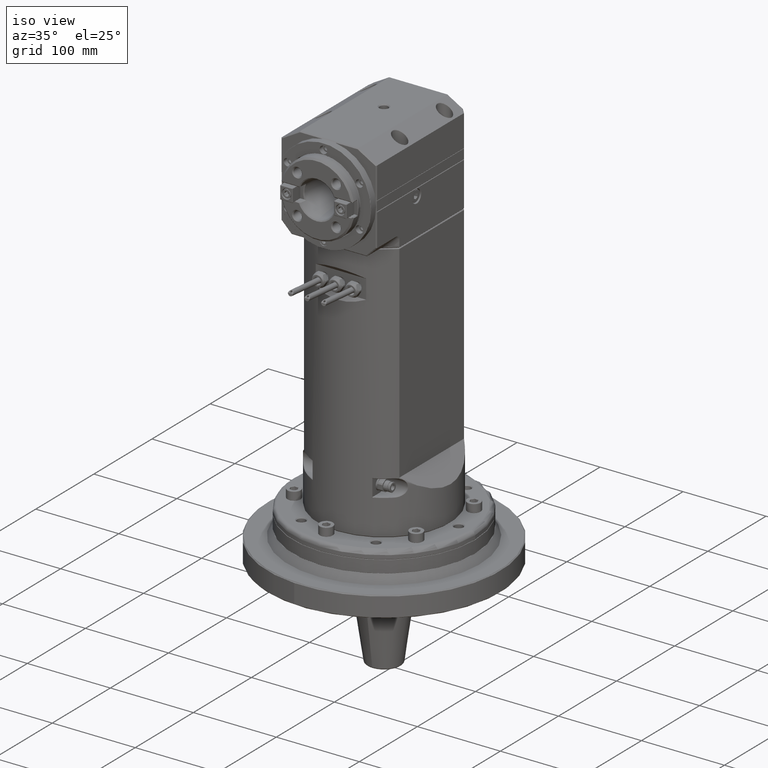
[diagram: clean part render]
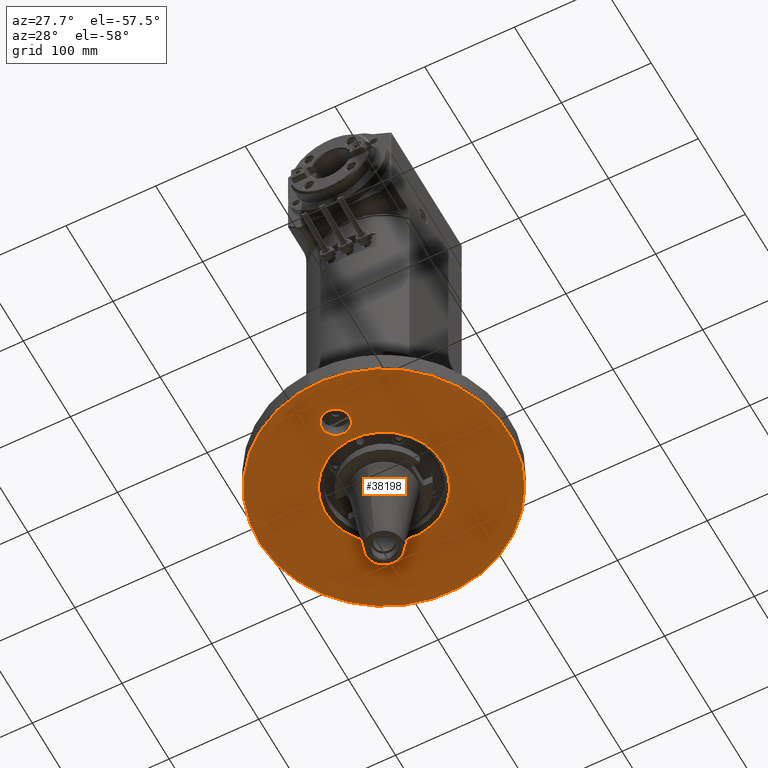
[diagram: tour spotlight — one face highlighted and labeled with its STEP entity id]
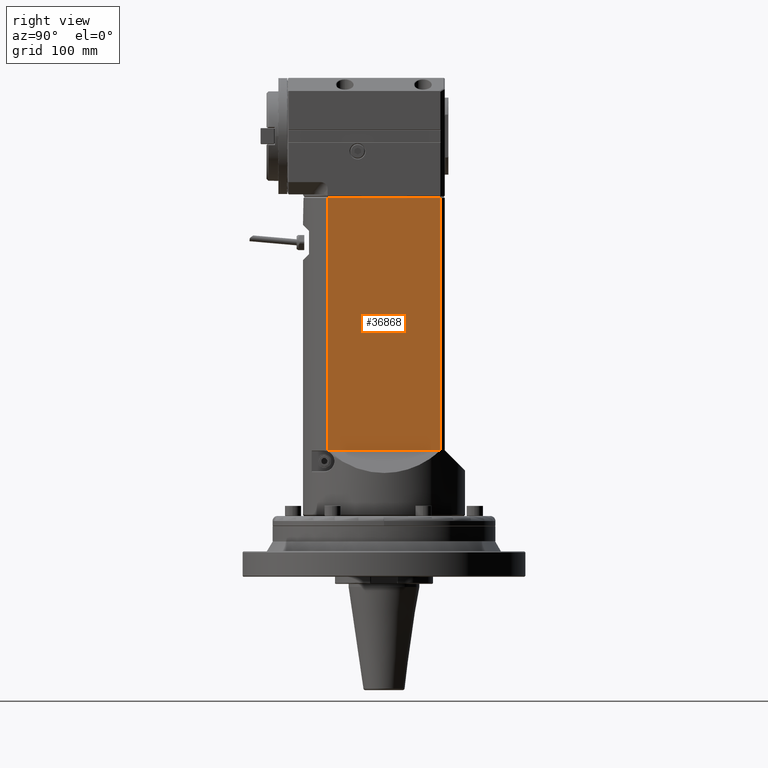
[diagram: tour spotlight — one face highlighted and labeled with its STEP entity id]
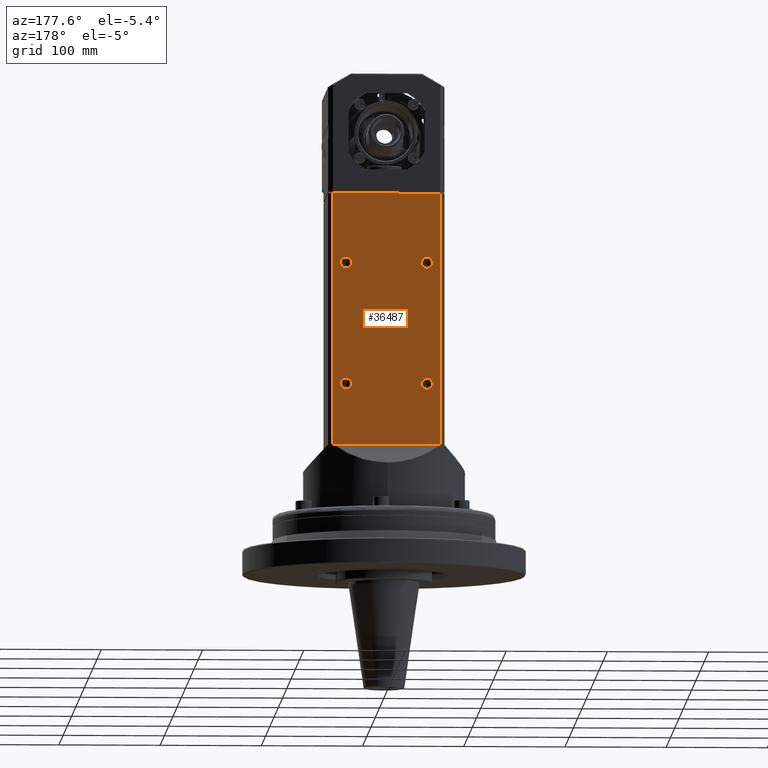
[diagram: tour spotlight — one face highlighted and labeled with its STEP entity id]
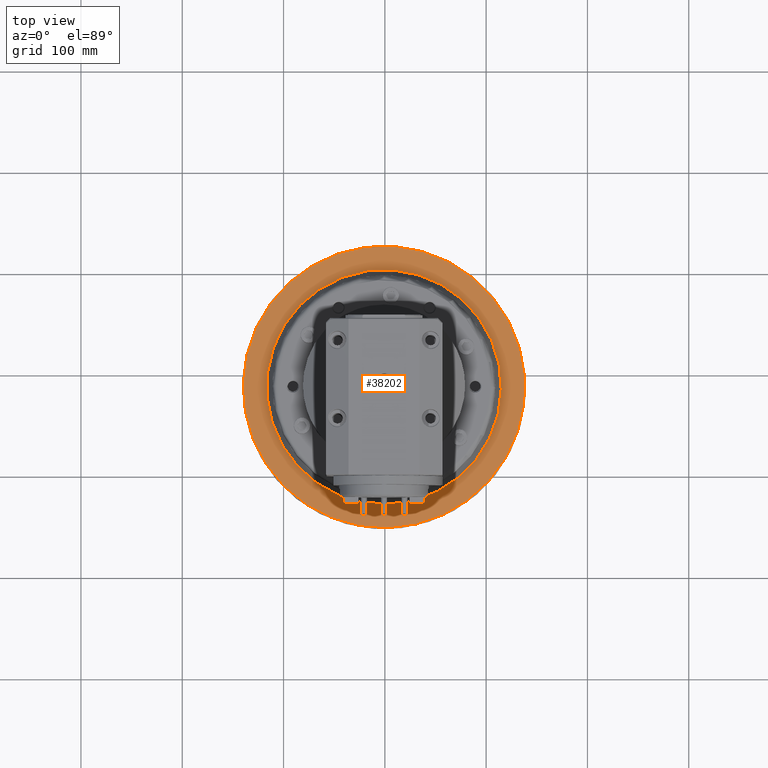
[diagram: tour spotlight — one face highlighted and labeled with its STEP entity id]
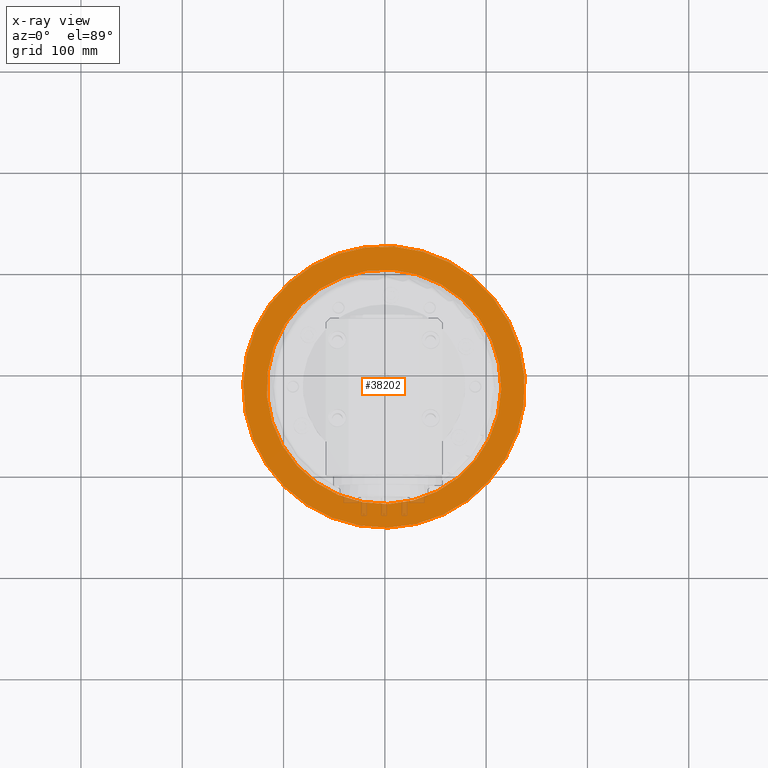
[diagram: x-ray of the same camera — body ghosted, this tour face saturated]
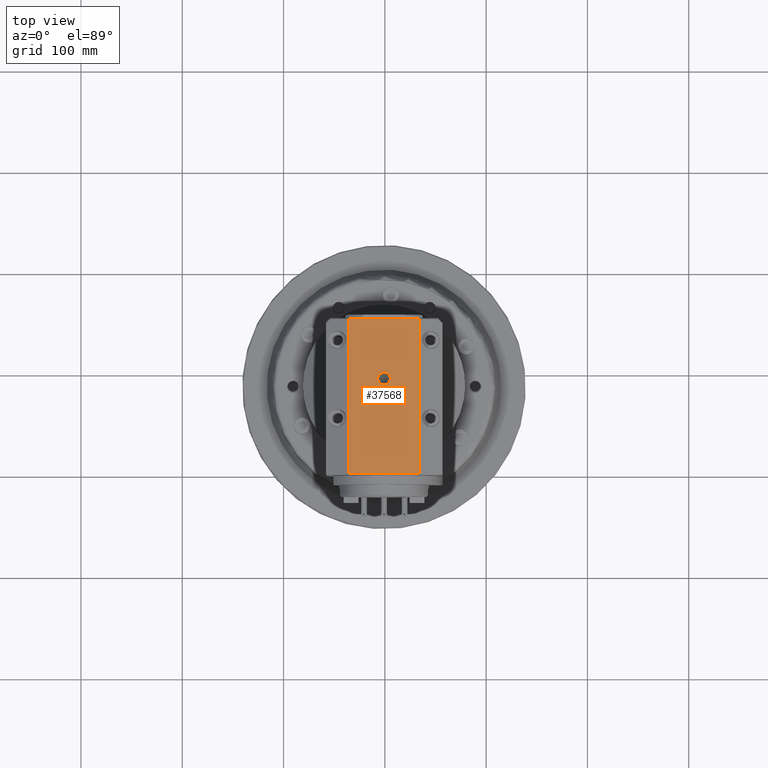
[diagram: tour spotlight — one face highlighted and labeled with its STEP entity id]
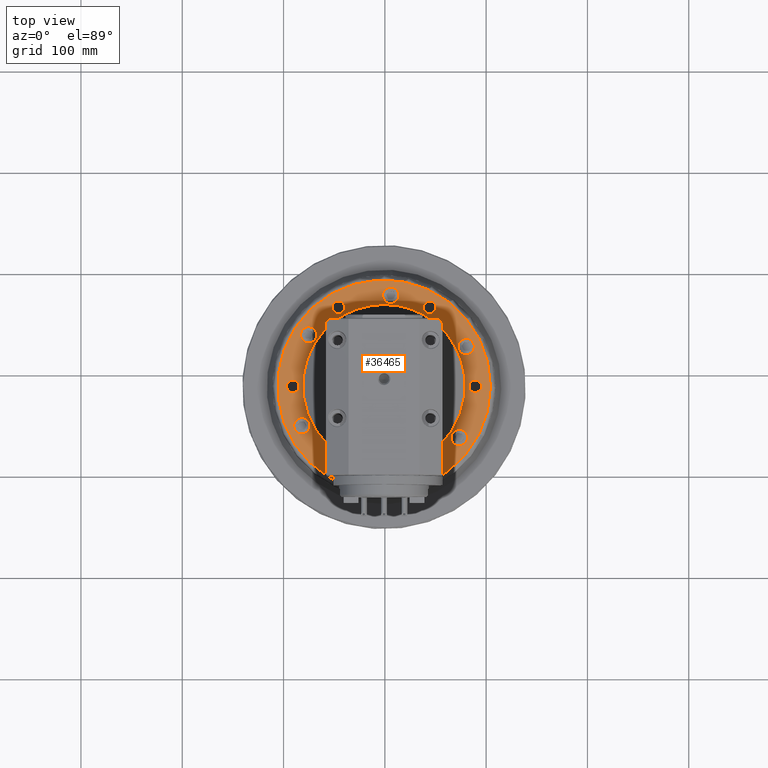
[diagram: tour spotlight — one face highlighted and labeled with its STEP entity id]
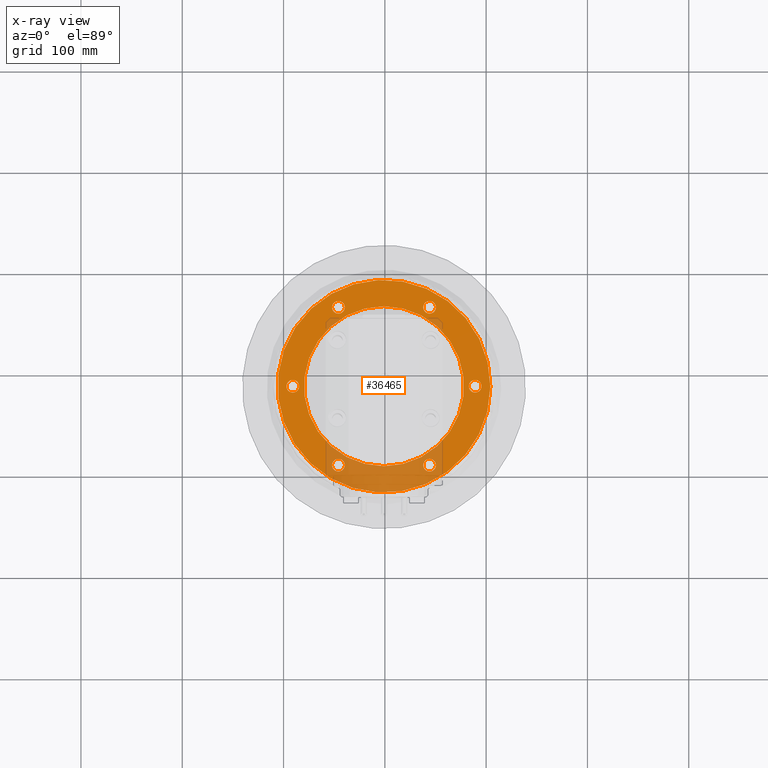
[diagram: x-ray of the same camera — body ghosted, this tour face saturated]
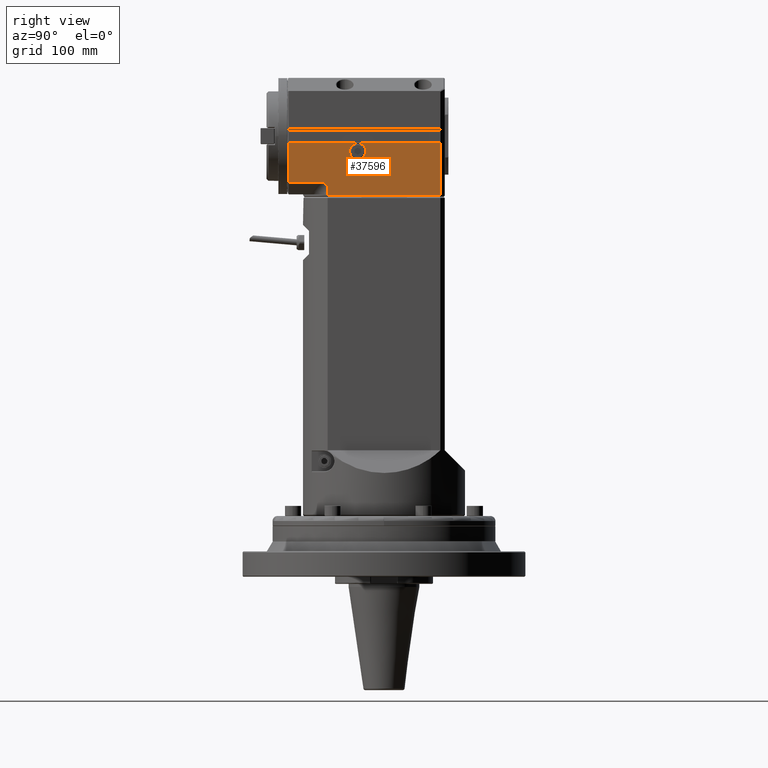
[diagram: tour spotlight — one face highlighted and labeled with its STEP entity id]
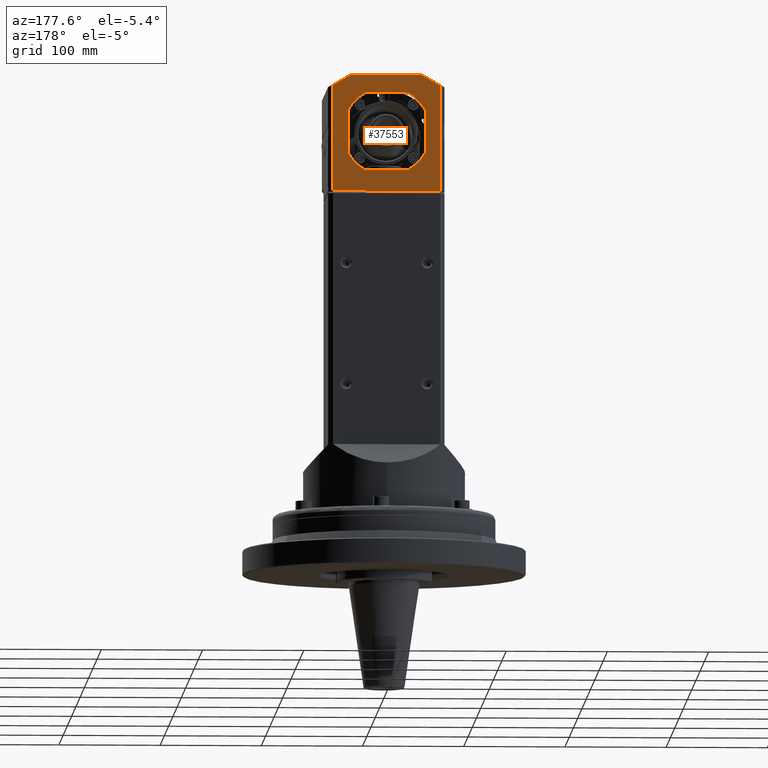
[diagram: tour spotlight — one face highlighted and labeled with its STEP entity id]
A machine part: a face-by-face anatomy tour. The part has 2191 B-rep faces; the first image is the clean iso view, then the 8 largest visible faces are spotlighted one at a time (largest first), each with its STEP entity span.

Face 1 — auxiliary view, entity #38198. In plain terms, the highlighted planar face has unit normal (0, 0, 1).
Definition (entity closure, byte-faithful):
#3638=FACE_BOUND('',#8796,.T.);
#3639=FACE_BOUND('',#8797,.T.);
#4438=PLANE('',#42023);
#6332=FACE_OUTER_BOUND('',#8795,.T.);
#8795=EDGE_LOOP('',(#34081));
#8796=EDGE_LOOP('',(#34082));
#8797=EDGE_LOOP('',(#34083));
#15755=CIRCLE('',#42022,2.55905511811024);
#15756=CIRCLE('',#42024,5.47244051134646);
#15757=CIRCLE('',#42025,0.610209860435433);
#19148=VERTEX_POINT('',#73003);
#19149=VERTEX_POINT('',#73007);
#19150=VERTEX_POINT('',#73009);
#24198=EDGE_CURVE('',#19148,#19148,#15755,.T.);
#24199=EDGE_CURVE('',#19149,#19149,#15756,.T.);
#24200=EDGE_CURVE('',#19150,#19150,#15757,.T.);
#34081=ORIENTED_EDGE('',*,*,#24199,.F.);
#34082=ORIENTED_EDGE('',*,*,#24200,.T.);
#34083=ORIENTED_EDGE('',*,*,#24198,.T.);
#38198=ADVANCED_FACE('',(#6332,#3638,#3639),#4438,.F.);
#42022=AXIS2_PLACEMENT_3D('',#73005,#51519,#51520);
#42023=AXIS2_PLACEMENT_3D('',#73006,#51521,#51522);
#42024=AXIS2_PLACEMENT_3D('',#73008,#51523,#51524);
#42025=AXIS2_PLACEMENT_3D('',#73010,#51525,#51526);
#51519=DIRECTION('center_axis',(0.,0.,1.));
#51520=DIRECTION('ref_axis',(0.,1.,0.));
#51521=DIRECTION('center_axis',(0.,0.,1.));
#51522=DIRECTION('ref_axis',(0.,1.,0.));
#51523=DIRECTION('center_axis',(0.,0.,1.));
#51524=DIRECTION('ref_axis',(0.,1.,0.));
#51525=DIRECTION('center_axis',(0.,0.,1.));
#51526=DIRECTION('ref_axis',(0.,-1.,0.));
#73003=CARTESIAN_POINT('',(0.,2.55905511811024,-1.37795275590551));
#73005=CARTESIAN_POINT('Origin',(0.,0.,-1.37795275590551));
#73006=CARTESIAN_POINT('Origin',(0.,0.,-1.37795275590551));
#73007=CARTESIAN_POINT('',(5.37394894446224E-14,5.47244051134604,-1.37795271887961));
#73008=CARTESIAN_POINT('Origin',(5.44096701201969E-14,-1.01380020745945E-13,
-1.37795271887992));
#73009=CARTESIAN_POINT('',(7.75012927823904E-15,-2.93309722617874,-1.37795275590551));
#73010=CARTESIAN_POINT('Origin',(7.675400123E-15,-3.54330708661417,-1.37795275590551));

Face 2 — right view, entity #36868. In plain terms, the highlighted planar face has unit normal (-1, -0, -0).
Definition (entity closure, byte-faithful):
#3865=PLANE('',#39440);
#5002=FACE_OUTER_BOUND('',#7253,.T.);
#7253=EDGE_LOOP('',(#27580,#27581,#27582,#27583));
#9306=LINE('',#54190,#11852);
#9307=LINE('',#54193,#11853);
#9933=LINE('',#58325,#12479);
#9934=LINE('',#58328,#12480);
#11852=VECTOR('',#43376,9.80314969514961);
#11853=VECTOR('',#43379,0.393700787401575);
#12479=VECTOR('',#44881,0.393700787401575);
#12480=VECTOR('',#44886,4.37964477584252);
#16370=VERTEX_POINT('',#54167);
#16380=VERTEX_POINT('',#54187);
#16381=VERTEX_POINT('',#54189);
#16382=VERTEX_POINT('',#54191);
#19906=EDGE_CURVE('',#16381,#16380,#9306,.T.);
#19908=EDGE_CURVE('',#16382,#16370,#9307,.T.);
#20969=EDGE_CURVE('',#16370,#16380,#9933,.T.);
#20971=EDGE_CURVE('',#16382,#16381,#9934,.T.);
#27580=ORIENTED_EDGE('',*,*,#20969,.F.);
#27581=ORIENTED_EDGE('',*,*,#19908,.F.);
#27582=ORIENTED_EDGE('',*,*,#20971,.T.);
#27583=ORIENTED_EDGE('',*,*,#19906,.T.);
#36868=ADVANCED_FACE('',(#5002),#3865,.F.);
#39440=AXIS2_PLACEMENT_3D('',#58327,#44884,#44885);
#43376=DIRECTION('',(9.076318445371E-9,-1.,3.653279527058E-9));
#43379=DIRECTION('',(0.,-1.,0.));
#44881=DIRECTION('',(0.,0.,-1.));
#44884=DIRECTION('center_axis',(1.,0.,0.));
#44885=DIRECTION('ref_axis',(0.,1.,0.));
#44886=DIRECTION('',(0.,0.,-1.));
#54167=CARTESIAN_POINT('',(-2.2637795274727,-12.3582677166446,2.18982238806098));
#54187=CARTESIAN_POINT('',(-2.26377949894556,-12.3582677208782,-2.18982237649169));
#54189=CARTESIAN_POINT('',(-2.26377952755906,-2.55511811023622,-2.18982238792205));
#54190=CARTESIAN_POINT('',(-2.26377952755906,-2.55511811023622,-2.18982238792205));
#54191=CARTESIAN_POINT('',(-2.26377952755906,-2.55511811023622,2.18982238792205));
#54193=CARTESIAN_POINT('',(-2.26377952755906,0.619881889763779,2.18982238792195));
#58325=CARTESIAN_POINT('',(-2.26377952755906,-12.3582677165354,-1.88976377952756));
#58327=CARTESIAN_POINT('Origin',(-2.26377952755906,-12.3976377952756,-3.77952755905512));
#58328=CARTESIAN_POINT('',(-2.26377952755906,-2.55511811023622,2.18982238792205));

Face 3 — auxiliary view, entity #36487. In plain terms, the highlighted planar face has unit normal (0, -1, 0).
Definition (entity closure, byte-faithful):
#3388=FACE_BOUND('',#6835,.T.);
#3389=FACE_BOUND('',#6836,.T.);
#3390=FACE_BOUND('',#6837,.T.);
#3391=FACE_BOUND('',#6838,.T.);
#3689=PLANE('',#39008);
#4621=FACE_OUTER_BOUND('',#6834,.T.);
#6834=EDGE_LOOP('',(#25494,#25495,#25496,#25497));
#6835=EDGE_LOOP('',(#25498));
#6836=EDGE_LOOP('',(#25499));
#6837=EDGE_LOOP('',(#25500));
#6838=EDGE_LOOP('',(#25501));
#9303=LINE('',#54179,#11849);
#9305=LINE('',#54186,#11851);
#9312=LINE('',#54293,#11858);
#9313=LINE('',#54295,#11859);
#11849=VECTOR('',#43367,0.393700787401575);
#11851=VECTOR('',#43373,0.393700787401575);
#11858=VECTOR('',#43398,4.16653749774016);
#11859=VECTOR('',#43401,0.393700787401575);
#14470=CIRCLE('',#39009,0.216535433070866);
#14471=CIRCLE('',#39010,0.216535433070866);
#14472=CIRCLE('',#39011,0.216535433070866);
#14473=CIRCLE('',#39012,0.216535433070866);
#16375=VERTEX_POINT('',#54176);
#16376=VERTEX_POINT('',#54178);
#16378=VERTEX_POINT('',#54183);
#16379=VERTEX_POINT('',#54185);
#16395=VERTEX_POINT('',#54296);
#16396=VERTEX_POINT('',#54298);
#16397=VERTEX_POINT('',#54300);
#16398=VERTEX_POINT('',#54302);
#19900=EDGE_CURVE('',#16376,#16375,#9303,.T.);
#19904=EDGE_CURVE('',#16378,#16379,#9305,.T.);
#19921=EDGE_CURVE('',#16378,#16376,#9312,.T.);
#19922=EDGE_CURVE('',#16379,#16375,#9313,.T.);
#19923=EDGE_CURVE('',#16395,#16395,#14470,.T.);
#19924=EDGE_CURVE('',#16396,#16396,#14471,.T.);
#19925=EDGE_CURVE('',#16397,#16397,#14472,.T.);
#19926=EDGE_CURVE('',#16398,#16398,#14473,.T.);
#25494=ORIENTED_EDGE('',*,*,#19922,.F.);
#25495=ORIENTED_EDGE('',*,*,#19904,.F.);
#25496=ORIENTED_EDGE('',*,*,#19921,.T.);
#25497=ORIENTED_EDGE('',*,*,#19900,.T.);
#25498=ORIENTED_EDGE('',*,*,#19923,.F.);
#25499=ORIENTED_EDGE('',*,*,#19924,.F.);
#25500=ORIENTED_EDGE('',*,*,#19925,.F.);
#25501=ORIENTED_EDGE('',*,*,#19926,.F.);
#36487=ADVANCED_FACE('',(#4621,#3388,#3389,#3390,#3391),#3689,.F.);
#39008=AXIS2_PLACEMENT_3D('',#54294,#43399,#43400);
#39009=AXIS2_PLACEMENT_3D('',#54297,#43402,#43403);
#39010=AXIS2_PLACEMENT_3D('',#54299,#43404,#43405);
#39011=AXIS2_PLACEMENT_3D('',#54301,#43406,#43407);
#39012=AXIS2_PLACEMENT_3D('',#54303,#43408,#43409);
#43367=DIRECTION('',(0.,-1.,0.));
#43373=DIRECTION('',(0.,-1.,0.));
#43398=DIRECTION('',(1.,0.,0.));
#43399=DIRECTION('center_axis',(0.,0.,1.));
#43400=DIRECTION('ref_axis',(0.,-1.,0.));
#43401=DIRECTION('',(1.,0.,0.));
#43402=DIRECTION('center_axis',(0.,0.,-1.));
#43403=DIRECTION('ref_axis',(1.,0.,0.));
#43404=DIRECTION('center_axis',(0.,0.,-1.));
#43405=DIRECTION('ref_axis',(1.,0.,0.));
#43406=DIRECTION('center_axis',(0.,0.,-1.));
#43407=DIRECTION('ref_axis',(1.,0.,0.));
#43408=DIRECTION('center_axis',(0.,0.,-1.));
#43409=DIRECTION('ref_axis',(1.,0.,0.));
#54176=CARTESIAN_POINT('',(2.08326874924056,-12.3582677165915,-2.36220472431138));
#54178=CARTESIAN_POINT('',(2.08326874886968,-2.55511811023622,-2.36220472440945));
#54179=CARTESIAN_POINT('',(2.08326874886976,0.619881889763779,-2.36220472440945));
#54183=CARTESIAN_POINT('',(-2.08326874886968,-2.55511811023622,-2.36220472440945));
#54185=CARTESIAN_POINT('',(-2.08326874920903,-12.3582677167936,-2.3622047242069));
#54186=CARTESIAN_POINT('',(-2.08326874886976,0.619881889763779,-2.36220472440945));
#54293=CARTESIAN_POINT('',(-2.08326874886968,-2.55511811023622,-2.36220472440945));
#54294=CARTESIAN_POINT('Origin',(-3.77952755905512,-2.55511811023622,-2.36220472440945));
#54295=CARTESIAN_POINT('',(-1.88976377952756,-12.3582677165354,-2.36220472440945));
#54296=CARTESIAN_POINT('',(1.35826771653543,-4.92125984251968,-2.36220472440945));
#54297=CARTESIAN_POINT('Origin',(1.5748031496063,-4.92125984251968,-2.36220472440945));
#54298=CARTESIAN_POINT('',(1.35826771653543,-9.64566929133858,-2.36220472440945));
#54299=CARTESIAN_POINT('Origin',(1.5748031496063,-9.64566929133858,-2.36220472440945));
#54300=CARTESIAN_POINT('',(-1.79133858267717,-4.92125984251968,-2.36220472440945));
#54301=CARTESIAN_POINT('Origin',(-1.5748031496063,-4.92125984251968,-2.36220472440945));
#54302=CARTESIAN_POINT('',(-1.79133858267717,-9.64566929133858,-2.36220472440945));
#54303=CARTESIAN_POINT('Origin',(-1.5748031496063,-9.64566929133858,-2.36220472440945));

Face 4 — top view, entity #38202. An x-ray twin of the same camera follows (body ghosted, this face saturated) — the face is partly hidden behind the body. In plain terms, the highlighted planar face has unit normal (0, 0, 1).
Definition (entity closure, byte-faithful):
#3640=FACE_BOUND('',#8802,.T.);
#4439=PLANE('',#42034);
#6336=FACE_OUTER_BOUND('',#8801,.T.);
#8801=EDGE_LOOP('',(#34100));
#8802=EDGE_LOOP('',(#34101));
#15762=CIRCLE('',#42033,5.47244041308268);
#15763=CIRCLE('',#42035,4.55801312941975);
#19155=VERTEX_POINT('',#73024);
#19156=VERTEX_POINT('',#73028);
#24208=EDGE_CURVE('',#19155,#19155,#15762,.T.);
#24209=EDGE_CURVE('',#19156,#19156,#15763,.T.);
#34100=ORIENTED_EDGE('',*,*,#24208,.T.);
#34101=ORIENTED_EDGE('',*,*,#24209,.T.);
#38202=ADVANCED_FACE('',(#6336,#3640),#4439,.T.);
#42033=AXIS2_PLACEMENT_3D('',#73026,#51544,#51545);
#42034=AXIS2_PLACEMENT_3D('',#73027,#51546,#51547);
#42035=AXIS2_PLACEMENT_3D('',#73029,#51548,#51549);
#51544=DIRECTION('center_axis',(0.,0.,1.));
#51545=DIRECTION('ref_axis',(0.,1.,0.));
#51546=DIRECTION('center_axis',(0.,0.,1.));
#51547=DIRECTION('ref_axis',(0.,1.,0.));
#51548=DIRECTION('center_axis',(0.,0.,-1.));
#51549=DIRECTION('ref_axis',(0.,-1.,0.));
#73024=CARTESIAN_POINT('',(-1.6533905261361E-14,5.47244041308237,-0.393700833123478));
#73026=CARTESIAN_POINT('Origin',(-1.72040859249016E-14,-5.69535180116535E-14,
-0.393700833123228));
#73027=CARTESIAN_POINT('Origin',(0.,0.,-0.393700787401575));
#73028=CARTESIAN_POINT('',(4.61444351993368E-15,4.55801312941977,-0.393700787401575));
#73029=CARTESIAN_POINT('Origin',(4.05624790099213E-15,2.01260015182047E-14,
-0.393700787401575));

Face 5 — top view, entity #37568. In plain terms, the highlighted planar face has unit normal (-0, 0, 1).
Definition (entity closure, byte-faithful):
#3541=FACE_BOUND('',#8069,.T.);
#4141=PLANE('',#40910);
#5702=FACE_OUTER_BOUND('',#8068,.T.);
#8068=EDGE_LOOP('',(#30997,#30998,#30999,#31000));
#8069=EDGE_LOOP('',(#31001));
#10642=LINE('',#66308,#13188);
#10644=LINE('',#66313,#13190);
#10645=LINE('',#66314,#13191);
#10646=LINE('',#66315,#13192);
#13188=VECTOR('',#48532,2.75590551181102);
#13190=VECTOR('',#48536,2.75590551181102);
#13191=VECTOR('',#48537,6.02362204724409);
#13192=VECTOR('',#48538,6.02362204724409);
#15251=CIRCLE('',#40911,0.246062992125984);
#18179=VERTEX_POINT('',#66303);
#18180=VERTEX_POINT('',#66307);
#18181=VERTEX_POINT('',#66311);
#18182=VERTEX_POINT('',#66312);
#18183=VERTEX_POINT('',#66316);
#22681=EDGE_CURVE('',#18179,#18180,#10642,.T.);
#22683=EDGE_CURVE('',#18181,#18182,#10644,.T.);
#22684=EDGE_CURVE('',#18181,#18180,#10645,.T.);
#22685=EDGE_CURVE('',#18182,#18179,#10646,.T.);
#22686=EDGE_CURVE('',#18183,#18183,#15251,.T.);
#30997=ORIENTED_EDGE('',*,*,#22683,.F.);
#30998=ORIENTED_EDGE('',*,*,#22684,.T.);
#30999=ORIENTED_EDGE('',*,*,#22681,.F.);
#31000=ORIENTED_EDGE('',*,*,#22685,.F.);
#31001=ORIENTED_EDGE('',*,*,#22686,.F.);
#37568=ADVANCED_FACE('',(#5702,#3541),#4141,.T.);
#40910=AXIS2_PLACEMENT_3D('',#66310,#48534,#48535);
#40911=AXIS2_PLACEMENT_3D('',#66317,#48539,#48540);
#48532=DIRECTION('',(-1.,0.,0.));
#48534=DIRECTION('center_axis',(0.,-1.,0.));
#48535=DIRECTION('ref_axis',(1.,0.,0.));
#48536=DIRECTION('',(1.,0.,0.));
#48537=DIRECTION('',(0.,0.,-1.));
#48538=DIRECTION('',(0.,0.,-1.));
#48539=DIRECTION('center_axis',(0.,-1.,0.));
#48540=DIRECTION('ref_axis',(-1.,0.,-1.157496539793E-14));
#66303=CARTESIAN_POINT('',(1.37795275590551,-17.0275590551181,-2.32283464566929));
#66307=CARTESIAN_POINT('',(-1.37795275590551,-17.0275590551181,-2.32283464566929));
#66308=CARTESIAN_POINT('',(1.37795275590551,-17.0275590551181,-2.32283464566929));
#66310=CARTESIAN_POINT('Origin',(-2.26377952755906,-17.0275590551181,-2.36220472440945));
#66311=CARTESIAN_POINT('',(-1.37795275590551,-17.0275590551181,3.7007874015748));
#66312=CARTESIAN_POINT('',(1.37795275590551,-17.0275590551181,3.7007874015748));
#66313=CARTESIAN_POINT('',(-1.37795275590551,-17.0275590551181,3.7007874015748));
#66314=CARTESIAN_POINT('',(-1.37795275590551,-17.0275590551181,3.7007874015748));
#66315=CARTESIAN_POINT('',(1.37795275590551,-17.0275590551181,3.7007874015748));
#66316=CARTESIAN_POINT('',(0.246062992125984,-17.0275590551181,2.14209700768268E-15));
#66317=CARTESIAN_POINT('Origin',(0.,-17.0275590551181,3.12791185412126E-15));

Face 6 — top view, entity #36465. An x-ray twin of the same camera follows (body ghosted, this face saturated) — the face is partly hidden behind the body. In plain terms, the highlighted planar face has unit normal (-0, 0, 1).
Definition (entity closure, byte-faithful):
#3378=FACE_BOUND('',#6803,.T.);
#3379=FACE_BOUND('',#6804,.T.);
#3380=FACE_BOUND('',#6805,.T.);
#3381=FACE_BOUND('',#6806,.T.);
#3382=FACE_BOUND('',#6807,.T.);
#3383=FACE_BOUND('',#6808,.T.);
#3384=FACE_BOUND('',#6809,.T.);
#3687=PLANE('',#38940);
#4599=FACE_OUTER_BOUND('',#6802,.T.);
#6802=EDGE_LOOP('',(#25353));
#6803=EDGE_LOOP('',(#25354));
#6804=EDGE_LOOP('',(#25355));
#6805=EDGE_LOOP('',(#25356));
#6806=EDGE_LOOP('',(#25357));
#6807=EDGE_LOOP('',(#25358));
#6808=EDGE_LOOP('',(#25359));
#6809=EDGE_LOOP('',(#25360));
#14428=CIRCLE('',#38938,4.13385826771654);
#14430=CIRCLE('',#38941,0.246067704381614);
#14431=CIRCLE('',#38942,0.246053964385433);
#14432=CIRCLE('',#38943,0.246053964385433);
#14433=CIRCLE('',#38944,0.246067704381614);
#14434=CIRCLE('',#38945,0.246053964385433);
#14435=CIRCLE('',#38946,0.246053964385433);
#14436=CIRCLE('',#38947,3.11023622047244);
#16336=VERTEX_POINT('',#54058);
#16337=VERTEX_POINT('',#54062);
#16338=VERTEX_POINT('',#54064);
#16339=VERTEX_POINT('',#54066);
#16340=VERTEX_POINT('',#54068);
#16341=VERTEX_POINT('',#54070);
#16342=VERTEX_POINT('',#54072);
#16343=VERTEX_POINT('',#54074);
#19841=EDGE_CURVE('',#16336,#16336,#14428,.T.);
#19843=EDGE_CURVE('',#16337,#16337,#14430,.T.);
#19844=EDGE_CURVE('',#16338,#16338,#14431,.T.);
#19845=EDGE_CURVE('',#16339,#16339,#14432,.T.);
#19846=EDGE_CURVE('',#16340,#16340,#14433,.T.);
#19847=EDGE_CURVE('',#16341,#16341,#14434,.T.);
#19848=EDGE_CURVE('',#16342,#16342,#14435,.T.);
#19849=EDGE_CURVE('',#16343,#16343,#14436,.T.);
#25353=ORIENTED_EDGE('',*,*,#19841,.T.);
#25354=ORIENTED_EDGE('',*,*,#19843,.T.);
#25355=ORIENTED_EDGE('',*,*,#19844,.T.);
#25356=ORIENTED_EDGE('',*,*,#19845,.T.);
#25357=ORIENTED_EDGE('',*,*,#19846,.T.);
#25358=ORIENTED_EDGE('',*,*,#19847,.T.);
#25359=ORIENTED_EDGE('',*,*,#19848,.T.);
#25360=ORIENTED_EDGE('',*,*,#19849,.F.);
#36465=ADVANCED_FACE('',(#4599,#3378,#3379,#3380,#3381,#3382,#3383,#3384),
#3687,.T.);
#38938=AXIS2_PLACEMENT_3D('',#54059,#43228,#43229);
#38940=AXIS2_PLACEMENT_3D('',#54061,#43232,#43233);
#38941=AXIS2_PLACEMENT_3D('',#54063,#43234,#43235);
#38942=AXIS2_PLACEMENT_3D('',#54065,#43236,#43237);
#38943=AXIS2_PLACEMENT_3D('',#54067,#43238,#43239);
#38944=AXIS2_PLACEMENT_3D('',#54069,#43240,#43241);
#38945=AXIS2_PLACEMENT_3D('',#54071,#43242,#43243);
#38946=AXIS2_PLACEMENT_3D('',#54073,#43244,#43245);
#38947=AXIS2_PLACEMENT_3D('',#54075,#43246,#43247);
#43228=DIRECTION('center_axis',(0.,-1.,0.));
#43229=DIRECTION('ref_axis',(1.,0.,0.));
#43232=DIRECTION('center_axis',(0.,-1.,0.));
#43233=DIRECTION('ref_axis',(1.,0.,0.));
#43234=DIRECTION('center_axis',(0.,1.,0.));
#43235=DIRECTION('ref_axis',(-1.,0.,0.));
#43236=DIRECTION('center_axis',(0.,1.,0.));
#43237=DIRECTION('ref_axis',(-0.500000000000017,0.,0.866025403784429));
#43238=DIRECTION('center_axis',(0.,1.,0.));
#43239=DIRECTION('ref_axis',(-0.500000000000017,0.,-0.866025403784429));
#43240=DIRECTION('center_axis',(0.,1.,0.));
#43241=DIRECTION('ref_axis',(-1.,0.,0.));
#43242=DIRECTION('center_axis',(0.,1.,0.));
#43243=DIRECTION('ref_axis',(-0.500000000000017,0.,0.866025403784429));
#43244=DIRECTION('center_axis',(0.,1.,0.));
#43245=DIRECTION('ref_axis',(0.500000000000017,0.,0.866025403784429));
#43246=DIRECTION('center_axis',(0.,-1.,0.));
#43247=DIRECTION('ref_axis',(4.567849342786E-10,0.,-1.));
#54058=CARTESIAN_POINT('',(-4.13381793865978,1.09273919746571E-15,0.0182599995330975));
#54059=CARTESIAN_POINT('Origin',(0.,1.08399728388583E-15,0.));
#54061=CARTESIAN_POINT('Origin',(0.,5.59482469102362E-16,0.));
#54062=CARTESIAN_POINT('',(3.54330708661417,6.00460189007405E-15,-0.24606770438162));
#54063=CARTESIAN_POINT('Origin',(3.54330708661417,7.69288395015748E-16,
0.));
#54064=CARTESIAN_POINT('',(1.77165354330709,-4.7315607250265E-15,-3.31464791480275));
#54065=CARTESIAN_POINT('Origin',(1.77165354330709,0.,-3.06859395041732));
#54066=CARTESIAN_POINT('',(-1.77165354330709,-4.50754918954603E-15,-3.31464791480275));
#54067=CARTESIAN_POINT('Origin',(-1.77165354330709,4.89547160464567E-16,
-3.06859395041732));
#54068=CARTESIAN_POINT('',(-3.54330708661417,6.05104330596634E-15,-0.246067704381618));
#54069=CARTESIAN_POINT('Origin',(-3.54330708661417,8.74191357972441E-16,
1.88229952103858E-15));
#54070=CARTESIAN_POINT('',(-1.77165354330709,-4.40100711779313E-15,2.8225399860319));
#54071=CARTESIAN_POINT('Origin',(-1.77165354330709,6.29417777740158E-16,
3.06859395041732));
#54072=CARTESIAN_POINT('',(1.77165354330709,-4.34637015791984E-15,2.8225399860319));
#54073=CARTESIAN_POINT('Origin',(1.77165354330709,7.69288395015748E-16,
3.06859395041732));
#54074=CARTESIAN_POINT('',(-3.8089408319938E-16,4.95994321729684E-14,3.11023622047249));
#54075=CARTESIAN_POINT('Origin',(0.,5.59482469102362E-16,-3.90451862802047E-15));

Face 7 — right view, entity #37596. In plain terms, the highlighted planar face has unit normal (1, 0, 0).
Definition (entity closure, byte-faithful):
#1169=B_SPLINE_CURVE_WITH_KNOTS('',3,(#67289,#67290,#67291,#67292,#67293,
#67294,#67295,#67296,#67297,#67298,#67299,#67300,#67301,#67302),
 .UNSPECIFIED.,.F.,.F.,(4,2,2,2,2,2,4),(9.99999982848054E-7,0.175652432881844,
0.34782779148756,0.571058036583428,0.795463477435368,0.959729591652043,
1.12861899136067),.UNSPECIFIED.);
#3549=FACE_BOUND('',#8105,.T.);
#4156=PLANE('',#40950);
#5730=FACE_OUTER_BOUND('',#8104,.T.);
#8104=EDGE_LOOP('',(#31143,#31144,#31145,#31146,#31147,#31148,#31149));
#8105=EDGE_LOOP('',(#31150));
#10619=LINE('',#66218,#13165);
#10673=LINE('',#67051,#13219);
#10685=LINE('',#67283,#13231);
#10686=LINE('',#67287,#13232);
#10687=LINE('',#67303,#13233);
#10688=LINE('',#67304,#13234);
#13165=VECTOR('',#48465,0.393700787401575);
#13219=VECTOR('',#48619,1.53543307086614);
#13231=VECTOR('',#48653,2.06692913386063);
#13232=VECTOR('',#48658,1.23250724352992);
#13233=VECTOR('',#48659,0.393700787401575);
#13234=VECTOR('',#48660,5.89060978949606);
#15268=CIRCLE('',#40951,0.31496062992126);
#18154=VERTEX_POINT('',#66215);
#18155=VERTEX_POINT('',#66217);
#18209=VERTEX_POINT('',#67048);
#18210=VERTEX_POINT('',#67050);
#18229=VERTEX_POINT('',#67281);
#18230=VERTEX_POINT('',#67286);
#18231=VERTEX_POINT('',#67288);
#18232=VERTEX_POINT('',#67305);
#22645=EDGE_CURVE('',#18155,#18154,#10619,.T.);
#22732=EDGE_CURVE('',#18209,#18210,#10673,.T.);
#22758=EDGE_CURVE('',#18154,#18229,#10685,.T.);
#22759=EDGE_CURVE('',#18209,#18230,#10686,.T.);
#22760=EDGE_CURVE('',#18230,#18231,#1169,.T.);
#22761=EDGE_CURVE('',#18231,#18155,#10687,.T.);
#22762=EDGE_CURVE('',#18229,#18210,#10688,.T.);
#22763=EDGE_CURVE('',#18232,#18232,#15268,.T.);
#31143=ORIENTED_EDGE('',*,*,#22732,.F.);
#31144=ORIENTED_EDGE('',*,*,#22759,.T.);
#31145=ORIENTED_EDGE('',*,*,#22760,.T.);
#31146=ORIENTED_EDGE('',*,*,#22761,.T.);
#31147=ORIENTED_EDGE('',*,*,#22645,.T.);
#31148=ORIENTED_EDGE('',*,*,#22758,.T.);
#31149=ORIENTED_EDGE('',*,*,#22762,.T.);
#31150=ORIENTED_EDGE('',*,*,#22763,.T.);
#37596=ADVANCED_FACE('',(#5730,#3549),#4156,.T.);
#40950=AXIS2_PLACEMENT_3D('',#67285,#48656,#48657);
#40951=AXIS2_PLACEMENT_3D('',#67306,#48661,#48662);
#48465=DIRECTION('',(0.,0.,-1.));
#48619=DIRECTION('',(0.,-1.,0.));
#48653=DIRECTION('',(-1.185455966193E-12,-1.,-4.777554013772E-13));
#48656=DIRECTION('center_axis',(-1.,0.,0.));
#48657=DIRECTION('ref_axis',(0.,-1.,0.));
#48658=DIRECTION('',(1.559773483969E-9,-6.239084857107E-9,-1.));
#48659=DIRECTION('',(0.,1.,0.));
#48660=DIRECTION('',(0.,0.,1.));
#48661=DIRECTION('center_axis',(1.,0.,0.));
#48662=DIRECTION('ref_axis',(0.,1.,0.));
#66215=CARTESIAN_POINT('',(-2.26377952755669,-12.4409448818858,-2.18982238792087));
#66217=CARTESIAN_POINT('',(-2.26377952747796,-12.4409448817872,2.18982238805262));
#66218=CARTESIAN_POINT('',(-2.26377952755906,-12.4409448818898,-1.18110236220472));
#67048=CARTESIAN_POINT('',(-2.26377952755906,-12.9724409448819,3.7007874015748));
#67050=CARTESIAN_POINT('',(-2.26377952755906,-14.507874015748,3.7007874015748));
#67051=CARTESIAN_POINT('',(-2.26377952755906,-12.9724409448819,3.7007874015748));
#67281=CARTESIAN_POINT('',(-2.26377952755906,-14.507874015748,-2.18982238792205));
#67283=CARTESIAN_POINT('',(-2.26377952755669,-12.4409448818858,-2.18982238792087));
#67285=CARTESIAN_POINT('Origin',(-2.26377952755906,-12.4015748031496,-2.36220472440945));
#67286=CARTESIAN_POINT('',(-2.26377952627743,-12.9724409565177,2.46828015804488));
#67287=CARTESIAN_POINT('',(-2.26377952755906,-12.9724409448819,3.7007874015748));
#67288=CARTESIAN_POINT('',(-2.26377952726228,-12.6986364305573,2.18982240443811));
#67289=CARTESIAN_POINT('Ctrl Pts',(-2.26377952755906,-12.9724409644107,
2.46828015804488));
#67290=CARTESIAN_POINT('Ctrl Pts',(-2.26377952755906,-12.9724409687416,
2.44522876777115));
#67291=CARTESIAN_POINT('Ctrl Pts',(-2.26377952755636,-12.9705701401451,
2.42209923555805));
#67292=CARTESIAN_POINT('Ctrl Pts',(-2.26377952755636,-12.9622374466074,
2.37724367409618));
#67293=CARTESIAN_POINT('Ctrl Pts',(-2.26377952755595,-12.9558620642496,
2.35547986185023));
#67294=CARTESIAN_POINT('Ctrl Pts',(-2.26377952755595,-12.9350476287306,
2.30800276012234));
#67295=CARTESIAN_POINT('Ctrl Pts',(-2.26377952755906,-12.9190574324114,
2.28367666141999));
#67296=CARTESIAN_POINT('Ctrl Pts',(-2.26377952755906,-12.8777537901749,
2.24201562655101));
#67297=CARTESIAN_POINT('Ctrl Pts',(-2.26377952755914,-12.8535063459824,
2.22583840683615));
#67298=CARTESIAN_POINT('Ctrl Pts',(-2.26377952755914,-12.8067707216757,
2.20548474831361));
#67299=CARTESIAN_POINT('Ctrl Pts',(-2.26377952755874,-12.7860309460017,
2.1994610320973));
#67300=CARTESIAN_POINT('Ctrl Pts',(-2.26377952755874,-12.7430404700845,
2.19156611300808));
#67301=CARTESIAN_POINT('Ctrl Pts',(-2.26377952755906,-12.7208005151316,
2.18982243578287));
#67302=CARTESIAN_POINT('Ctrl Pts',(-2.26377952755906,-12.6986364305572,
2.18982242218067));
#67303=CARTESIAN_POINT('',(-2.26377952755906,-12.4015748031496,2.18982238792195));
#67304=CARTESIAN_POINT('',(-2.26377952755906,-14.507874015748,-2.18982238792205));
#67305=CARTESIAN_POINT('',(-2.26377952755911,-14.1732283464567,1.3385826771653));
#67306=CARTESIAN_POINT('Origin',(-2.26377952755906,-14.1732283464567,1.02362204724409));

Face 8 — auxiliary view, entity #37553. In plain terms, the highlighted planar face has unit normal (0, -1, 0).
Definition (entity closure, byte-faithful):
#3534=FACE_BOUND('',#8047,.T.);
#4129=PLANE('',#40868);
#5687=FACE_OUTER_BOUND('',#8046,.T.);
#8046=EDGE_LOOP('',(#30902,#30903,#30904,#30905,#30906,#30907));
#8047=EDGE_LOOP('',(#30908,#30909,#30910,#30911,#30912,#30913,#30914,#30915));
#10604=LINE('',#66141,#13150);
#10607=LINE('',#66163,#13153);
#10608=LINE('',#66165,#13154);
#10609=LINE('',#66167,#13155);
#10610=LINE('',#66169,#13156);
#10611=LINE('',#66171,#13157);
#10612=LINE('',#66172,#13158);
#10613=LINE('',#66177,#13159);
#10614=LINE('',#66182,#13160);
#10615=LINE('',#66185,#13161);
#13150=VECTOR('',#48410,1.58461510267126);
#13153=VECTOR('',#48415,0.393700787401575);
#13154=VECTOR('',#48416,4.13393914372441);
#13155=VECTOR('',#48417,0.826609901557453);
#13156=VECTOR('',#48418,2.73480715020236);
#13157=VECTOR('',#48419,0.826609901557453);
#13158=VECTOR('',#48420,0.393700787401575);
#13159=VECTOR('',#48423,1.58461510216575);
#13160=VECTOR('',#48428,1.58461510294961);
#13161=VECTOR('',#48431,1.58461510267441);
#15224=CIRCLE('',#40869,1.69291338582717);
#15225=CIRCLE('',#40870,1.69291338582677);
#15226=CIRCLE('',#40871,1.69291338582638);
#15227=CIRCLE('',#40872,1.69291338582677);
#18124=VERTEX_POINT('',#66139);
#18125=VERTEX_POINT('',#66140);
#18130=VERTEX_POINT('',#66161);
#18131=VERTEX_POINT('',#66162);
#18132=VERTEX_POINT('',#66164);
#18133=VERTEX_POINT('',#66166);
#18134=VERTEX_POINT('',#66168);
#18135=VERTEX_POINT('',#66170);
#18136=VERTEX_POINT('',#66173);
#18137=VERTEX_POINT('',#66174);
#18138=VERTEX_POINT('',#66176);
#18139=VERTEX_POINT('',#66179);
#18140=VERTEX_POINT('',#66181);
#18141=VERTEX_POINT('',#66183);
#22610=EDGE_CURVE('',#18124,#18125,#10604,.T.);
#22617=EDGE_CURVE('',#18130,#18131,#10607,.T.);
#22618=EDGE_CURVE('',#18131,#18132,#10608,.T.);
#22619=EDGE_CURVE('',#18132,#18133,#10609,.T.);
#22620=EDGE_CURVE('',#18133,#18134,#10610,.T.);
#22621=EDGE_CURVE('',#18134,#18135,#10611,.T.);
#22622=EDGE_CURVE('',#18135,#18130,#10612,.T.);
#22623=EDGE_CURVE('',#18136,#18137,#15224,.T.);
#22624=EDGE_CURVE('',#18136,#18138,#10613,.T.);
#22625=EDGE_CURVE('',#18124,#18138,#15225,.T.);
#22626=EDGE_CURVE('',#18139,#18125,#15226,.T.);
#22627=EDGE_CURVE('',#18139,#18140,#10614,.T.);
#22628=EDGE_CURVE('',#18141,#18140,#15227,.T.);
#22629=EDGE_CURVE('',#18141,#18137,#10615,.T.);
#30902=ORIENTED_EDGE('',*,*,#22617,.T.);
#30903=ORIENTED_EDGE('',*,*,#22618,.T.);
#30904=ORIENTED_EDGE('',*,*,#22619,.T.);
#30905=ORIENTED_EDGE('',*,*,#22620,.T.);
#30906=ORIENTED_EDGE('',*,*,#22621,.T.);
#30907=ORIENTED_EDGE('',*,*,#22622,.T.);
#30908=ORIENTED_EDGE('',*,*,#22623,.F.);
#30909=ORIENTED_EDGE('',*,*,#22624,.T.);
#30910=ORIENTED_EDGE('',*,*,#22625,.F.);
#30911=ORIENTED_EDGE('',*,*,#22610,.T.);
#30912=ORIENTED_EDGE('',*,*,#22626,.F.);
#30913=ORIENTED_EDGE('',*,*,#22627,.T.);
#30914=ORIENTED_EDGE('',*,*,#22628,.F.);
#30915=ORIENTED_EDGE('',*,*,#22629,.T.);
#37553=ADVANCED_FACE('',(#5687,#3534),#4129,.F.);
#40868=AXIS2_PLACEMENT_3D('',#66160,#48413,#48414);
#40869=AXIS2_PLACEMENT_3D('',#66175,#48421,#48422);
#40870=AXIS2_PLACEMENT_3D('',#66178,#48424,#48425);
#40871=AXIS2_PLACEMENT_3D('',#66180,#48426,#48427);
#40872=AXIS2_PLACEMENT_3D('',#66184,#48429,#48430);
#48410=DIRECTION('',(1.129828876495E-14,-1.,7.979416440244E-14));
#48413=DIRECTION('center_axis',(0.,0.,1.));
#48414=DIRECTION('ref_axis',(1.,0.,0.));
#48415=DIRECTION('',(1.,0.,0.));
#48416=DIRECTION('',(1.325846805675E-12,-1.,-3.524426028683E-12));
#48417=DIRECTION('',(-0.866025403784429,-0.500000000000017,0.));
#48418=DIRECTION('',(-1.,0.,0.));
#48419=DIRECTION('',(-0.866025403784429,0.500000000000017,0.));
#48420=DIRECTION('',(0.,1.,0.));
#48421=DIRECTION('center_axis',(0.,0.,-1.));
#48422=DIRECTION('ref_axis',(0.468014227848781,0.883720930232564,0.));
#48423=DIRECTION('',(-1.,-1.129828876855E-14,0.));
#48424=DIRECTION('center_axis',(0.,0.,-1.));
#48425=DIRECTION('ref_axis',(-0.883720929945929,0.468014228390016,0.));
#48426=DIRECTION('center_axis',(0.,0.,-1.));
#48427=DIRECTION('ref_axis',(-0.468014228391991,-0.883720929944883,0.));
#48428=DIRECTION('',(1.,0.,-7.926455710268E-14));
#48429=DIRECTION('center_axis',(0.,0.,-1.));
#48430=DIRECTION('ref_axis',(0.883720930147124,-0.468014228010113,0.));
#48431=DIRECTION('',(0.,1.,-7.979416440229E-14));
#66139=CARTESIAN_POINT('',(-1.49606299200763,-13.9714719757423,-2.36220472452543));
#66140=CARTESIAN_POINT('',(-1.49606299208923,-15.5560870788661,-2.36220472444405));
#66141=CARTESIAN_POINT('',(-1.49606299212598,-13.9714719760866,-2.36220472440945));
#66160=CARTESIAN_POINT('Origin',(0.,-14.7637795275591,-2.36220472440945));
#66161=CARTESIAN_POINT('',(-2.0832687490563,-12.4409448818602,-2.36220472436204));
#66162=CARTESIAN_POINT('',(2.08326874886417,-12.440944881874,-2.36220472439488));
#66163=CARTESIAN_POINT('',(-1.89782311345374E-15,-12.4409448818898,-2.36220472440945));
#66164=CARTESIAN_POINT('',(2.08326874886968,-16.5748840255984,-2.36220472440945));
#66165=CARTESIAN_POINT('',(2.08326874886417,-12.440944881874,-2.36220472439488));
#66166=CARTESIAN_POINT('',(1.36740357510118,-16.988188976378,-2.36220472440945));
#66167=CARTESIAN_POINT('',(2.08326874886968,-16.5748840255984,-2.36220472440945));
#66168=CARTESIAN_POINT('',(-1.36740357510118,-16.988188976378,-2.36220472440945));
#66169=CARTESIAN_POINT('',(1.36740357510118,-16.988188976378,-2.36220472440945));
#66170=CARTESIAN_POINT('',(-2.08326874886968,-16.5748840255984,-2.36220472440945));
#66171=CARTESIAN_POINT('',(-1.36740357510118,-16.988188976378,-2.36220472440945));
#66172=CARTESIAN_POINT('',(-2.08326874886975,-12.4015748031496,-2.36220472440945));
#66173=CARTESIAN_POINT('',(0.792307551083071,-13.2677165354331,-2.36220472440984));
#66174=CARTESIAN_POINT('',(1.49606299200771,-13.9714719757421,-2.36220472452558));
#66175=CARTESIAN_POINT('Origin',(2.26590399986496E-14,-14.7637795275591,
-2.36220472440984));
#66176=CARTESIAN_POINT('',(-0.792307551082677,-13.2677165354331,-2.36220472440945));
#66177=CARTESIAN_POINT('',(0.792307551083071,-13.2677165354331,-2.36220472440945));
#66178=CARTESIAN_POINT('Origin',(2.26590399986496E-14,-14.7637795275591,
-2.36220472440945));
#66179=CARTESIAN_POINT('',(-0.792307551818362,-16.2598425195663,-2.36220472452555));
#66180=CARTESIAN_POINT('Origin',(2.26590399986496E-14,-14.7637795275591,
-2.36220472440906));
#66181=CARTESIAN_POINT('',(0.792307551819101,-16.2598425195663,-2.36220472452582));
#66182=CARTESIAN_POINT('',(-0.792307551474409,-16.259842519685,-2.36220472440945));
#66183=CARTESIAN_POINT('',(1.49606299208934,-15.5560870788663,-2.36220472444421));
#66184=CARTESIAN_POINT('Origin',(2.26590399986496E-14,-14.7637795275591,
-2.36220472440945));
#66185=CARTESIAN_POINT('',(1.49606299212598,-15.5560870787598,-2.36220472440945));